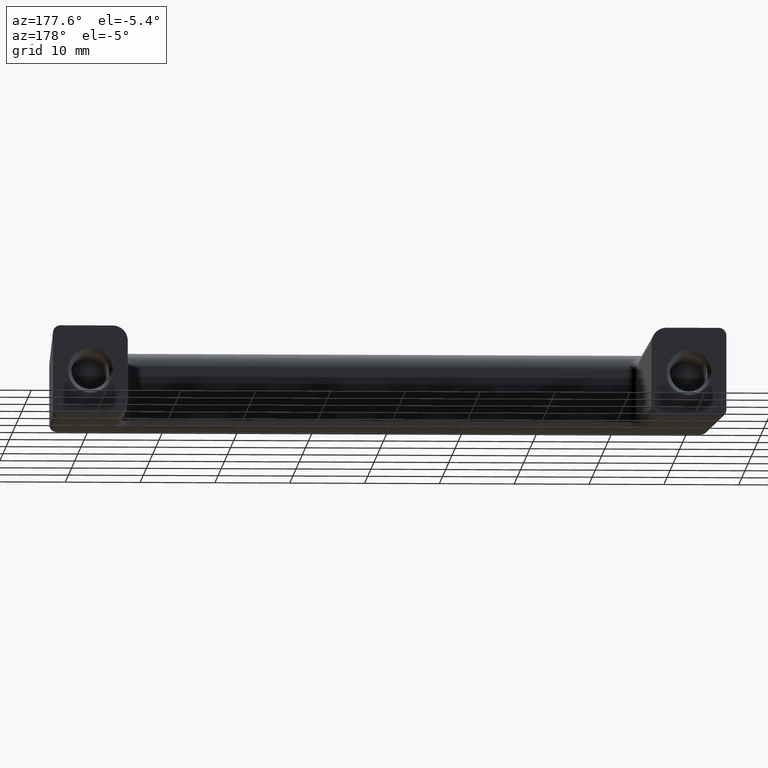
[diagram: clean part render]
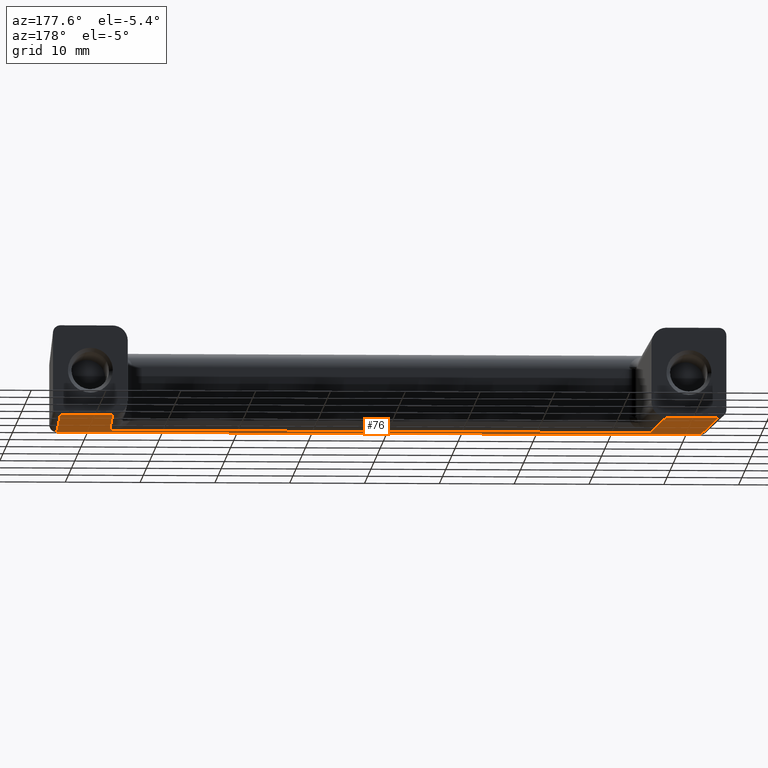
[diagram: same view with one face highlighted and labeled with its STEP entity id]
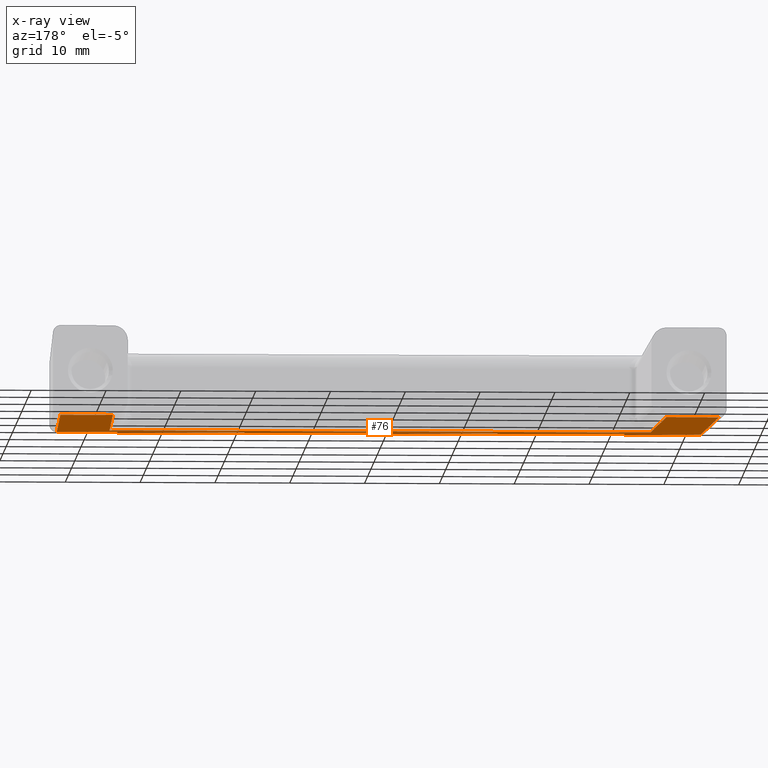
[diagram: x-ray of the same camera — body ghosted, the highlighted face saturated]
A machine part, auxiliary view. The second image highlights one B-rep face of the part: STEP entity #76.
The next image is the same camera in x-ray: the body ghosted, the highlighted face saturated — about 0% of this face is hidden behind the body in this view.
In plain terms, the highlighted planar face has unit normal (0, -0.0278, -0.9996).
Its self-contained STEP definition (entity closure, byte-faithful):
#76=ADVANCED_FACE('',(#450),#449,.T.);
#449=PLANE('',#954);
#450=FACE_OUTER_BOUND('',#955,.T.);
#951=CARTESIAN_POINT('',(-5.28004226952E+001,-3.85305437740E+001,-4.92970711739E+000));
#952=DIRECTION('',(0.00000000000E+000,-2.77670672404E-002,-9.99614420653E-001));
#953=DIRECTION('',(0.00000000000E+000,9.99614420653E-001,-2.77670672404E-002));
#954=AXIS2_PLACEMENT_3D('',#951,#952,#953);
#955=EDGE_LOOP('',(#1198,#1199,#1200,#1201,#1202,#1203,#1204,#1205));
#1198=ORIENTED_EDGE('',*,*,#1408,.T.);
#1199=ORIENTED_EDGE('',*,*,#1407,.T.);
#1200=ORIENTED_EDGE('',*,*,#1354,.F.);
#1201=ORIENTED_EDGE('',*,*,#1436,.T.);
#1202=ORIENTED_EDGE('',*,*,#1432,.T.);
#1203=ORIENTED_EDGE('',*,*,#1430,.T.);
#1204=ORIENTED_EDGE('',*,*,#1437,.F.);
#1205=ORIENTED_EDGE('',*,*,#1410,.T.);
#1354=EDGE_CURVE('',#1628,#1635,#1636,.T.);
#1407=EDGE_CURVE('',#1979,#1635,#1992,.T.);
#1408=EDGE_CURVE('',#1915,#1979,#1998,.T.);
#1410=EDGE_CURVE('',#2011,#1915,#2012,.T.);
#1430=EDGE_CURVE('',#2107,#2132,#2139,.T.);
#1432=EDGE_CURVE('',#2145,#2107,#2152,.T.);
#1436=EDGE_CURVE('',#1628,#2145,#2176,.T.);
#1437=EDGE_CURVE('',#2011,#2132,#2182,.T.);
#1628=VERTEX_POINT('',#2621);
#1635=VERTEX_POINT('',#2630);
#1636=LINE('',#2631,#2632);
#1915=VERTEX_POINT('',#2862);
#1979=VERTEX_POINT('',#2965);
#1992=LINE('',#2997,#2998);
#1998=LINE('',#3000,#3001);
#2011=VERTEX_POINT('',#3007);
#2012=LINE('',#3008,#3009);
#2107=VERTEX_POINT('',#3098);
#2132=VERTEX_POINT('',#3131);
#2139=LINE('',#3140,#3141);
#2145=VERTEX_POINT('',#3143);
#2152=LINE('',#3152,#3153);
#2176=LINE('',#3176,#3177);
#2182=LINE('',#3179,#3180);
#2621=CARTESIAN_POINT('',(4.39999855792E+001,0.00000000000E+000,-6.00000000000E+000));
#2630=CARTESIAN_POINT('',(3.70019138582E+001,0.00000000000E+000,-6.00000000000E+000));
#2631=CARTESIAN_POINT('',(4.39999855792E+001,0.00000000000E+000,-6.00000000000E+000));
#2632=VECTOR('',#2633,6.99807172102E+000);
#2633=DIRECTION('',(-1.00000000000E+000,0.00000000000E+000,0.00000000000E+000));
#2862=CARTESIAN_POINT('',(-3.61397196256E+001,-3.10555341345E+001,-5.13734627404E+000));
#2965=CARTESIAN_POINT('',(3.61393196256E+001,-3.10555341345E+001,-5.13734627404E+000));
#2997=CARTESIAN_POINT('',(3.61393196256E+001,-3.10555341345E+001,-5.13734627404E+000));
#2998=VECTOR('',#2999,3.10794858490E+001);
#2999=DIRECTION('',(2.77544563249E-002,9.99229340065E-001,-2.77563705574E-002));
#3000=CARTESIAN_POINT('',(-3.61397196256E+001,-3.10555341345E+001,-5.13734627404E+000));
#3001=VECTOR('',#3002,7.22790392513E+001);
#3002=DIRECTION('',(1.00000000000E+000,0.00000000000E+000,0.00000000000E+000));
#3007=CARTESIAN_POINT('',(-3.70023138582E+001,0.00000000000E+000,-6.00000000000E+000));
#3008=CARTESIAN_POINT('',(-3.70023138582E+001,0.00000000000E+000,-6.00000000000E+000));
#3009=VECTOR('',#3010,3.10794858490E+001);
#3010=DIRECTION('',(2.77544563249E-002,-9.99229340065E-001,2.77563705574E-002));
#3098=CARTESIAN_POINT('',(-4.30273920497E+001,-3.50277670672E+001,-5.02700647035E+000));
#3131=CARTESIAN_POINT('',(-4.40003855793E+001,0.00000000000E+000,-6.00000000000E+000));
#3140=CARTESIAN_POINT('',(-4.30273920497E+001,-3.50277670672E+001,-5.02700647035E+000));
#3141=VECTOR('',#3142,3.50547842460E+001);
#3142=DIRECTION('',(-2.77563690827E-002,9.99229286976E-001,-2.77563690827E-002));
#3143=CARTESIAN_POINT('',(4.30274852040E+001,-3.50277670672E+001,-5.02700647035E+000));
#3152=CARTESIAN_POINT('',(4.30274852040E+001,-3.50277670672E+001,-5.02700647035E+000));
#3153=VECTOR('',#3154,8.60548772537E+001);
#3154=DIRECTION('',(-1.00000000000E+000,0.00000000000E+000,0.00000000000E+000));
#3176=CARTESIAN_POINT('',(4.39999855792E+001,0.00000000000E+000,-6.00000000000E+000));
#3177=VECTOR('',#3178,3.50547705613E+001);
#3178=DIRECTION('',(-2.77423118088E-002,-9.99229677056E-001,2.77563799182E-002));
#3179=CARTESIAN_POINT('',(-3.70023138582E+001,0.00000000000E+000,-6.00000000000E+000));
#3180=VECTOR('',#3181,6.99807172112E+000);
#3181=DIRECTION('',(-1.00000000000E+000,0.00000000000E+000,0.00000000000E+000));